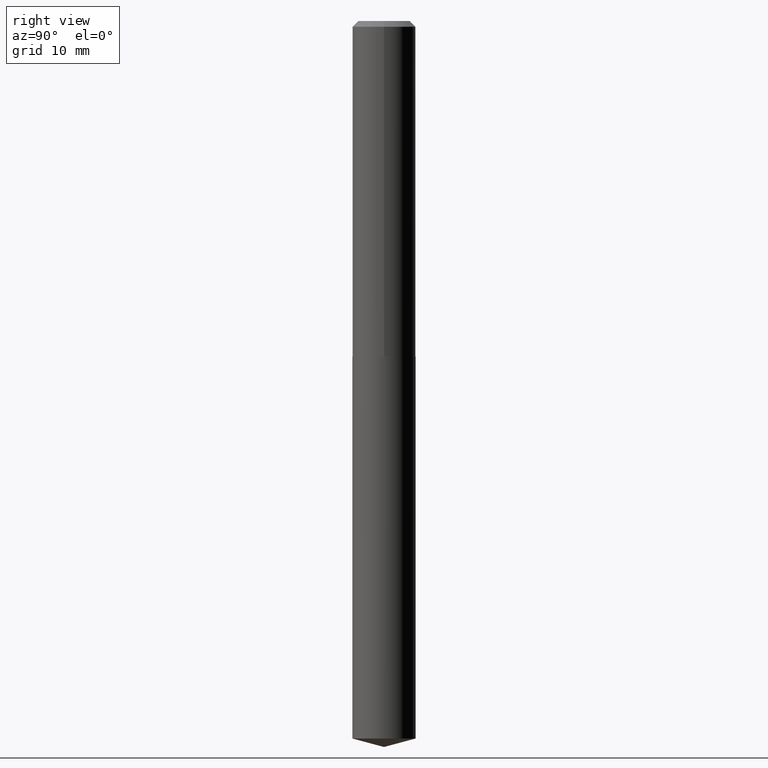
[diagram: clean part render]
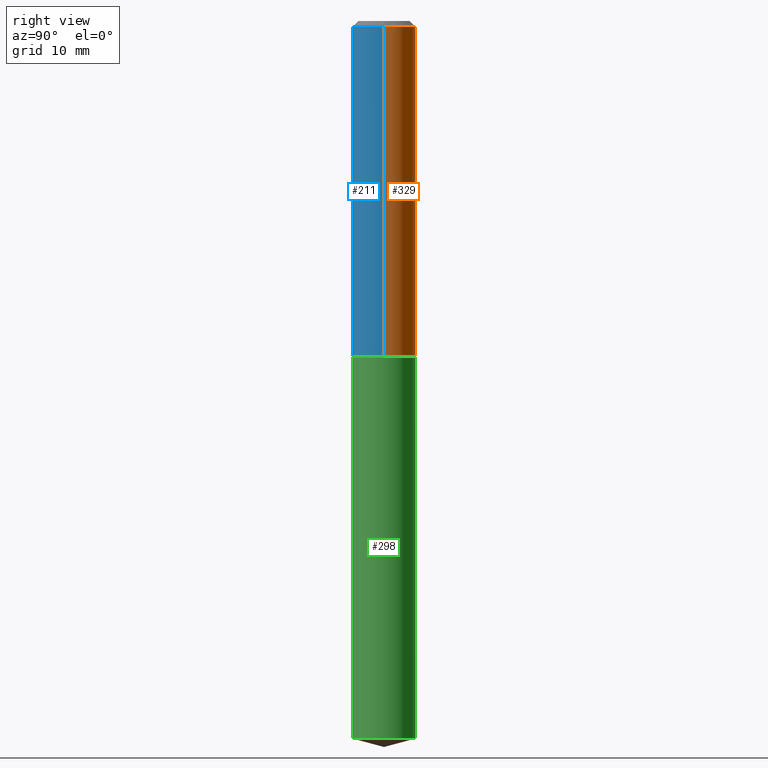
[diagram: same view with three faces highlighted in distinct colors, each labeled with its STEP entity id]
A machine part, right view with three faces highlighted in distinct colors.
Their STEP definitions:

[orange] entity #329 — the highlighted cylindrical surface (edge-blend (fillet) strip) has radius 4.4196 mm, axis along (-0, 0, 1).
#32 = VECTOR ( 'NONE', #285, 39.37007874015748143 ) ;
#50 = CIRCLE ( 'NONE', #385, 0.1740000000000001823 ) ;
#52 = EDGE_CURVE ( 'NONE', #384, #332, #50, .T. ) ;
#61 = AXIS2_PLACEMENT_3D ( 'NONE', #181, #101, #215 ) ;
#63 = ORIENTED_EDGE ( 'NONE', *, *, #52, .T. ) ;
#67 = CARTESIAN_POINT ( 'NONE',  ( -0.1740000000000001823, -5.214167413290135067E-15, -1.847499999999999920 ) ) ;
#74 = EDGE_CURVE ( 'NONE', #332, #344, #167, .T. ) ;
#77 = DIRECTION ( 'NONE',  ( -2.445468806185136877E-29, 3.491481338843145188E-15, 1.000000000000000000 ) ) ;
#79 = VECTOR ( 'NONE', #77, 39.37007874015748143 ) ;
#81 = ORIENTED_EDGE ( 'NONE', *, *, #121, .F. ) ;
#101 = DIRECTION ( 'NONE',  ( -2.445468806185136597E-29, 3.491481338843145583E-15, 1.000000000000000000 ) ) ;
#110 = DIRECTION ( 'NONE',  ( 1.000000000000000000, -6.982962677686266711E-15, 0.000000000000000000 ) ) ;
#116 = CARTESIAN_POINT ( 'NONE',  ( 4.518003619427039369E-29, -6.450511773512711278E-15, -1.847499999999999920 ) ) ;
#121 = EDGE_CURVE ( 'NONE', #384, #132, #294, .T. ) ;
#124 = CIRCLE ( 'NONE', #214, 0.1739999999999999880 ) ;
#132 = VERTEX_POINT ( 'NONE', #328 ) ;
#148 = EDGE_LOOP ( 'NONE', ( #63, #179, #216, #81 ) ) ;
#150 = CARTESIAN_POINT ( 'NONE',  ( 0.1740000000000001823, -7.665547279430122726E-15, -1.847499999999999920 ) ) ;
#167 = LINE ( 'NONE', #347, #79 ) ;
#179 = ORIENTED_EDGE ( 'NONE', *, *, #74, .T. ) ;
#181 = CARTESIAN_POINT ( 'NONE',  ( 0.000000000000000000, 0.000000000000000000, 0.000000000000000000 ) ) ;
#214 = AXIS2_PLACEMENT_3D ( 'NONE', #380, #266, #110 ) ;
#215 = DIRECTION ( 'NONE',  ( 1.000000000000000000, -6.982962677686267499E-15, 4.876176775795935793E-29 ) ) ;
#216 = ORIENTED_EDGE ( 'NONE', *, *, #248, .F. ) ;
#248 = EDGE_CURVE ( 'NONE', #132, #344, #124, .T. ) ;
#266 = DIRECTION ( 'NONE',  ( -2.445468806185136597E-29, 3.491481338843145583E-15, 1.000000000000000000 ) ) ;
#285 = DIRECTION ( 'NONE',  ( -2.445468806185136877E-29, 3.491481338843145188E-15, 1.000000000000000000 ) ) ;
#294 = LINE ( 'NONE', #323, #32 ) ;
#303 = DIRECTION ( 'NONE',  ( 1.000000000000000000, -6.982962677686264344E-15, 0.000000000000000000 ) ) ;
#312 = CYLINDRICAL_SURFACE ( 'NONE', #61, 0.1740000000000000713 ) ;
#323 = CARTESIAN_POINT ( 'NONE',  ( 0.1740000000000000713, -1.215035505917411055E-15, 8.484547589884932035E-30 ) ) ;
#328 = CARTESIAN_POINT ( 'NONE',  ( 0.1739999999999999880, -1.324144297756259366E-15, -0.03125000000000024286 ) ) ;
#329 = ADVANCED_FACE ( 'NONE', ( #349 ), #312, .T. ) ;
#332 = VERTEX_POINT ( 'NONE', #67 ) ;
#339 = CARTESIAN_POINT ( 'NONE',  ( -0.1739999999999999880, -2.043465922453204373E-15, -0.03125000000000024286 ) ) ;
#344 = VERTEX_POINT ( 'NONE', #339 ) ;
#347 = CARTESIAN_POINT ( 'NONE',  ( -0.1740000000000000713, 1.236344360222574830E-15, -8.558947057043539962E-30 ) ) ;
#349 = FACE_OUTER_BOUND ( 'NONE', #148, .T. ) ;
#359 = DIRECTION ( 'NONE',  ( -2.445468806185136597E-29, 3.491481338843145583E-15, 1.000000000000000000 ) ) ;
#380 = CARTESIAN_POINT ( 'NONE',  ( 7.642090019328611420E-31, -1.091087918388491499E-16, -0.03125000000000024286 ) ) ;
#384 = VERTEX_POINT ( 'NONE', #150 ) ;
#385 = AXIS2_PLACEMENT_3D ( 'NONE', #116, #359, #303 ) ;

[blue] entity #211 — the highlighted cylindrical surface (edge-blend (fillet) strip) has radius 4.4196 mm, axis along (-0, 0, 1).
#19 = CARTESIAN_POINT ( 'NONE',  ( 0.000000000000000000, 0.000000000000000000, 0.000000000000000000 ) ) ;
#28 = FACE_OUTER_BOUND ( 'NONE', #62, .T. ) ;
#32 = VECTOR ( 'NONE', #285, 39.37007874015748143 ) ;
#33 = CIRCLE ( 'NONE', #120, 0.1739999999999999880 ) ;
#40 = ORIENTED_EDGE ( 'NONE', *, *, #121, .T. ) ;
#49 = ORIENTED_EDGE ( 'NONE', *, *, #227, .F. ) ;
#62 = EDGE_LOOP ( 'NONE', ( #117, #209, #40, #49 ) ) ;
#67 = CARTESIAN_POINT ( 'NONE',  ( -0.1740000000000001823, -5.214167413290135067E-15, -1.847499999999999920 ) ) ;
#74 = EDGE_CURVE ( 'NONE', #332, #344, #167, .T. ) ;
#77 = DIRECTION ( 'NONE',  ( -2.445468806185136877E-29, 3.491481338843145188E-15, 1.000000000000000000 ) ) ;
#79 = VECTOR ( 'NONE', #77, 39.37007874015748143 ) ;
#90 = CYLINDRICAL_SURFACE ( 'NONE', #103, 0.1740000000000000713 ) ;
#103 = AXIS2_PLACEMENT_3D ( 'NONE', #19, #128, #352 ) ;
#104 = DIRECTION ( 'NONE',  ( -2.445468806185136597E-29, 3.491481338843145583E-15, 1.000000000000000000 ) ) ;
#117 = ORIENTED_EDGE ( 'NONE', *, *, #74, .F. ) ;
#120 = AXIS2_PLACEMENT_3D ( 'NONE', #130, #104, #136 ) ;
#121 = EDGE_CURVE ( 'NONE', #384, #132, #294, .T. ) ;
#128 = DIRECTION ( 'NONE',  ( -2.445468806185136597E-29, 3.491481338843145583E-15, 1.000000000000000000 ) ) ;
#130 = CARTESIAN_POINT ( 'NONE',  ( 7.642090019328611420E-31, -1.091087918388491499E-16, -0.03125000000000024286 ) ) ;
#132 = VERTEX_POINT ( 'NONE', #328 ) ;
#136 = DIRECTION ( 'NONE',  ( 1.000000000000000000, -6.982962677686266711E-15, 0.000000000000000000 ) ) ;
#150 = CARTESIAN_POINT ( 'NONE',  ( 0.1740000000000001823, -7.665547279430122726E-15, -1.847499999999999920 ) ) ;
#151 = EDGE_CURVE ( 'NONE', #332, #384, #254, .T. ) ;
#167 = LINE ( 'NONE', #347, #79 ) ;
#209 = ORIENTED_EDGE ( 'NONE', *, *, #151, .T. ) ;
#211 = ADVANCED_FACE ( 'NONE', ( #28 ), #90, .T. ) ;
#227 = EDGE_CURVE ( 'NONE', #344, #132, #33, .T. ) ;
#236 = DIRECTION ( 'NONE',  ( -2.445468806185136597E-29, 3.491481338843145583E-15, 1.000000000000000000 ) ) ;
#254 = CIRCLE ( 'NONE', #348, 0.1740000000000001823 ) ;
#265 = DIRECTION ( 'NONE',  ( 1.000000000000000000, -6.982962677686264344E-15, 0.000000000000000000 ) ) ;
#285 = DIRECTION ( 'NONE',  ( -2.445468806185136877E-29, 3.491481338843145188E-15, 1.000000000000000000 ) ) ;
#294 = LINE ( 'NONE', #323, #32 ) ;
#323 = CARTESIAN_POINT ( 'NONE',  ( 0.1740000000000000713, -1.215035505917411055E-15, 8.484547589884932035E-30 ) ) ;
#328 = CARTESIAN_POINT ( 'NONE',  ( 0.1739999999999999880, -1.324144297756259366E-15, -0.03125000000000024286 ) ) ;
#332 = VERTEX_POINT ( 'NONE', #67 ) ;
#339 = CARTESIAN_POINT ( 'NONE',  ( -0.1739999999999999880, -2.043465922453204373E-15, -0.03125000000000024286 ) ) ;
#344 = VERTEX_POINT ( 'NONE', #339 ) ;
#347 = CARTESIAN_POINT ( 'NONE',  ( -0.1740000000000000713, 1.236344360222574830E-15, -8.558947057043539962E-30 ) ) ;
#348 = AXIS2_PLACEMENT_3D ( 'NONE', #382, #236, #265 ) ;
#352 = DIRECTION ( 'NONE',  ( 1.000000000000000000, -6.982962677686267499E-15, 4.876176775795935793E-29 ) ) ;
#382 = CARTESIAN_POINT ( 'NONE',  ( 4.518003619427039369E-29, -6.450511773512711278E-15, -1.847499999999999920 ) ) ;
#384 = VERTEX_POINT ( 'NONE', #150 ) ;

[green] entity #298 — the highlighted cylindrical surface (edge-blend (fillet) strip) has radius 4.4196 mm, axis along (-0, 0, 1).
#5 = VERTEX_POINT ( 'NONE', #363 ) ;
#16 = CARTESIAN_POINT ( 'NONE',  ( 4.519226353830132171E-29, -6.452257514182132781E-15, -1.847999999999999865 ) ) ;
#31 = CARTESIAN_POINT ( 'NONE',  ( -1.215035505917364906E-15, -0.1740000000000064273, -1.847999999999999199 ) ) ;
#36 = LINE ( 'NONE', #372, #246 ) ;
#51 = CARTESIAN_POINT ( 'NONE',  ( 9.667801149324647603E-29, -1.380322537295493422E-14, -3.953376840516984903 ) ) ;
#70 = DIRECTION ( 'NONE',  ( -2.445440975892115844E-29, 3.491521193406753176E-15, 1.000000000000000000 ) ) ;
#89 = EDGE_CURVE ( 'NONE', #133, #5, #203, .T. ) ;
#91 = FACE_OUTER_BOUND ( 'NONE', #213, .T. ) ;
#96 = EDGE_CURVE ( 'NONE', #208, #133, #250, .T. ) ;
#106 = DIRECTION ( 'NONE',  ( -2.445440975892115844E-29, 3.491521193406753176E-15, 1.000000000000000000 ) ) ;
#123 = VECTOR ( 'NONE', #155, 39.37007874015748143 ) ;
#129 = CYLINDRICAL_SURFACE ( 'NONE', #276, 0.1739999999999999880 ) ;
#133 = VERTEX_POINT ( 'NONE', #31 ) ;
#138 = DIRECTION ( 'NONE',  ( -6.982962677686265133E-15, -1.000000000000000000, 3.140055165131337128E-15 ) ) ;
#144 = AXIS2_PLACEMENT_3D ( 'NONE', #302, #70, #218 ) ;
#152 = DIRECTION ( 'NONE',  ( -2.445440975892115844E-29, 3.491521193406753176E-15, 1.000000000000000000 ) ) ;
#153 = CIRCLE ( 'NONE', #263, 0.1739999999999999880 ) ;
#155 = DIRECTION ( 'NONE',  ( -2.445440975892115844E-29, 3.491521193406753176E-15, 1.000000000000000000 ) ) ;
#185 = CARTESIAN_POINT ( 'NONE',  ( -1.215035505917364906E-15, -0.1740000000000064273, -1.847999999999999199 ) ) ;
#203 = CIRCLE ( 'NONE', #144, 0.1739999999999999880 ) ;
#208 = VERTEX_POINT ( 'NONE', #287 ) ;
#213 = EDGE_LOOP ( 'NONE', ( #304, #274, #313, #358 ) ) ;
#218 = DIRECTION ( 'NONE',  ( -6.982962677686265133E-15, -1.000000000000000000, 3.140055165131337128E-15 ) ) ;
#235 = CARTESIAN_POINT ( 'NONE',  ( 1.236344360222670479E-15, 0.1739999999999861380, -3.953376840516985347 ) ) ;
#246 = VECTOR ( 'NONE', #152, 39.37007874015748143 ) ;
#250 = LINE ( 'NONE', #185, #123 ) ;
#256 = DIRECTION ( 'NONE',  ( -2.445440975892115844E-29, 3.491521193406753176E-15, 1.000000000000000000 ) ) ;
#257 = VERTEX_POINT ( 'NONE', #235 ) ;
#263 = AXIS2_PLACEMENT_3D ( 'NONE', #51, #106, #138 ) ;
#274 = ORIENTED_EDGE ( 'NONE', *, *, #327, .T. ) ;
#276 = AXIS2_PLACEMENT_3D ( 'NONE', #16, #256, #291 ) ;
#284 = EDGE_CURVE ( 'NONE', #208, #257, #153, .T. ) ;
#287 = CARTESIAN_POINT ( 'NONE',  ( -1.215035505917313433E-15, -0.1740000000000137825, -3.953376840516984014 ) ) ;
#291 = DIRECTION ( 'NONE',  ( -6.982962677686265133E-15, -1.000000000000000000, 3.140055165131337128E-15 ) ) ;
#298 = ADVANCED_FACE ( 'NONE', ( #91 ), #129, .T. ) ;
#302 = CARTESIAN_POINT ( 'NONE',  ( 4.519226353830132171E-29, -6.452257514182132781E-15, -1.847999999999999865 ) ) ;
#304 = ORIENTED_EDGE ( 'NONE', *, *, #284, .T. ) ;
#313 = ORIENTED_EDGE ( 'NONE', *, *, #89, .F. ) ;
#327 = EDGE_CURVE ( 'NONE', #257, #5, #36, .T. ) ;
#358 = ORIENTED_EDGE ( 'NONE', *, *, #96, .F. ) ;
#363 = CARTESIAN_POINT ( 'NONE',  ( 1.236344360222670676E-15, 0.1739999999999935210, -1.848000000000000309 ) ) ;
#372 = CARTESIAN_POINT ( 'NONE',  ( 1.236344360222619006E-15, 0.1739999999999935210, -1.848000000000000309 ) ) ;